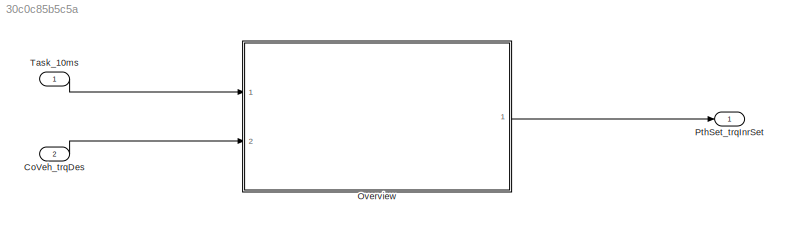
MODEL slx_30c0c85b5c5a
KIND model
CONFIG AbsTol = auto
CONFIG EnableMultiTasking = off
CONFIG FixedStep = auto
CONFIG MaxStep = auto
CONFIG MinStep = auto
CONFIG RelTol = 1e-3
CONFIG SampleTimeConstraint = Unconstrained
CONFIG Solver = VariableStepAuto
CONFIG SolverName = VariableStepAuto
CONFIG StartTime = 0.0
CONFIG StopTime = 10.0
BLOCK [Inport] CoVeh_trqDes
  IconDisplay = Port number
  Port = 2
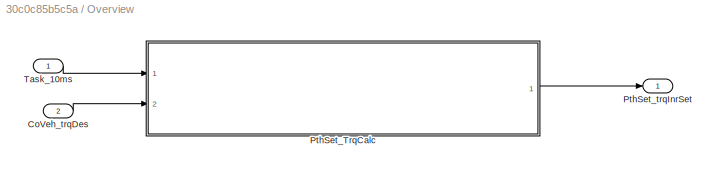
BLOCK [SubSystem] Overview
  Ports = [2, 1]
  RequestExecContextInheritance = off
BLOCK [Inport] Overview/CoVeh_trqDes
  IconDisplay = Port number
  Port = 2
BLOCK [ModelReference] Overview/PthSet_TrqCalc
  ModelNameDialog = PthSet_TrqCalc
  ModelReferenceVersion = 1.61
  Ports = [2, 1]
BLOCK [Outport] Overview/PthSet_trqInrSet
  IconDisplay = Port number
BLOCK [Inport] Overview/Task_10ms
  IconDisplay = Port number
BLOCK [Outport] PthSet_trqInrSet
  IconDisplay = Port number
BLOCK [Inport] Task_10ms
  IconDisplay = Port number
  OutputFunctionCall = on
LINE CoVeh_trqDes:1 -> Overview:2
LINE Overview/CoVeh_trqDes:1 -> Overview/PthSet_TrqCalc:2
LINE Overview/PthSet_TrqCalc:1 -> Overview/PthSet_trqInrSet:1
LINE Overview/Task_10ms:1 -> Overview/PthSet_TrqCalc:1
LINE Overview:1 -> PthSet_trqInrSet:1
LINE Task_10ms:1 -> Overview:1
